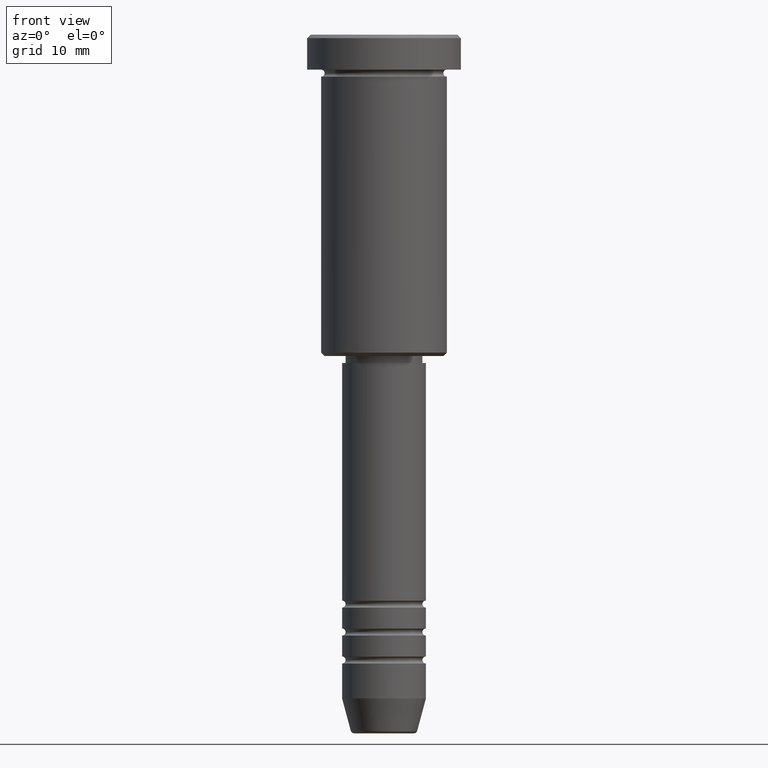
[diagram: clean part render]
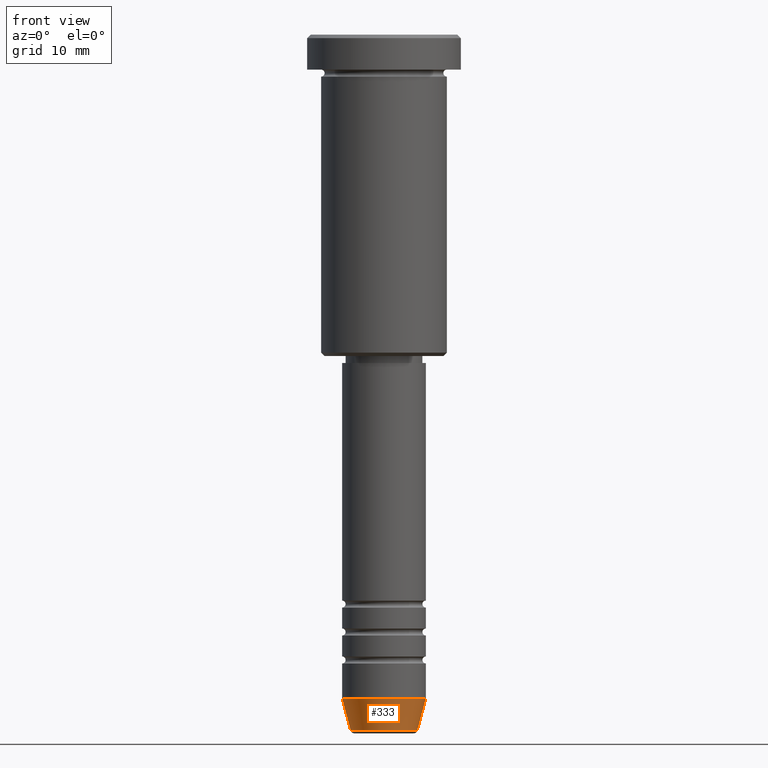
[diagram: same view with one face highlighted and labeled with its STEP entity id]
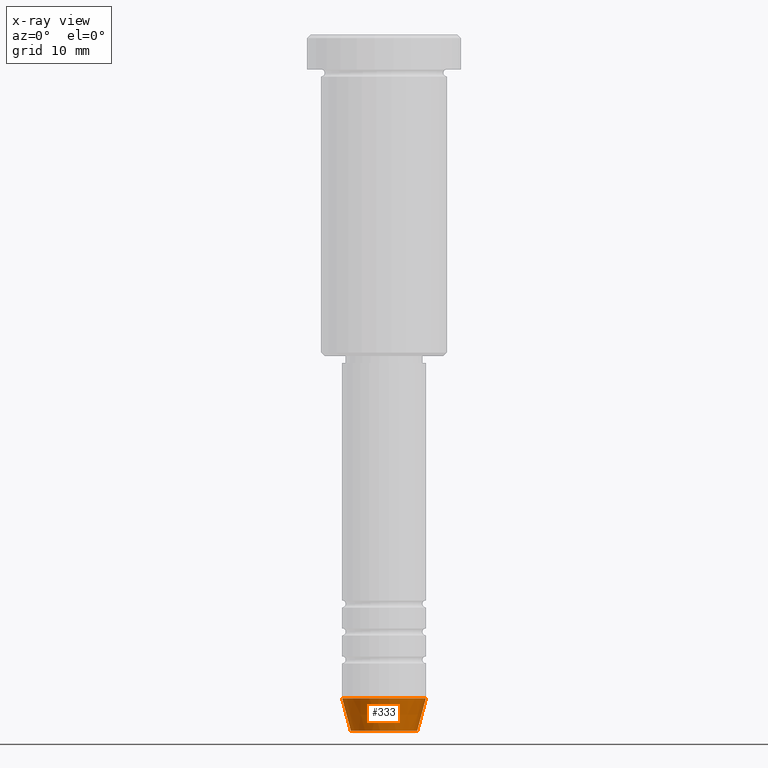
[diagram: x-ray of the same camera — body ghosted, the highlighted face saturated]
A machine part, front view. The second image highlights one B-rep face of the part: STEP entity #333.
The next image is the same camera in x-ray: the body ghosted, the highlighted face saturated — about 0% of this face is hidden behind the body in this view.
In plain terms, the highlighted conical surface has half-angle 15 deg.
Its self-contained STEP definition (entity closure, byte-faithful):
#44 = CARTESIAN_POINT ( 'NONE',  ( -4.759553456999436882, 6.588326350684601277E-16, -99.62940952255127058 ) ) ;
#50 = VERTEX_POINT ( 'NONE', #251 ) ;
#89 = FACE_OUTER_BOUND ( 'NONE', #985, .T. ) ;
#180 = VERTEX_POINT ( 'NONE', #639 ) ;
#184 = EDGE_CURVE ( 'NONE', #685, #606, #198, .T. ) ;
#198 = LINE ( 'NONE', #1008, #725 ) ;
#233 = ORIENTED_EDGE ( 'NONE', *, *, #798, .T. ) ;
#244 = AXIS2_PLACEMENT_3D ( 'NONE', #697, #352, #342 ) ;
#248 = AXIS2_PLACEMENT_3D ( 'NONE', #907, #1094, #927 ) ;
#251 = CARTESIAN_POINT ( 'NONE',  ( 4.759553456999436882, 0.000000000000000000, -99.62940952255127058 ) ) ;
#263 = DIRECTION ( 'NONE',  ( 0.2588190451025213501, 0.000000000000000000, 0.9659258262890680902 ) ) ;
#324 = CIRCLE ( 'NONE', #244, 4.759553456999436882 ) ;
#333 = ADVANCED_FACE ( 'NONE', ( #89 ), #576, .T. ) ;
#342 = DIRECTION ( 'NONE',  ( 1.000000000000000000, 0.000000000000000000, 0.000000000000000000 ) ) ;
#352 = DIRECTION ( 'NONE',  ( -0.000000000000000000, -0.000000000000000000, 1.000000000000000000 ) ) ;
#375 = DIRECTION ( 'NONE',  ( -0.2588190451025213501, 3.169619151431772337E-17, 0.9659258262890680902 ) ) ;
#472 = CARTESIAN_POINT ( 'NONE',  ( 6.000000000000000000, 0.000000000000000000, -95.00000000000000000 ) ) ;
#502 = ORIENTED_EDGE ( 'NONE', *, *, #942, .T. ) ;
#548 = LINE ( 'NONE', #472, #891 ) ;
#576 = CONICAL_SURFACE ( 'NONE', #248, 6.000000000000000000, 0.2617993877991500740 ) ;
#606 = VERTEX_POINT ( 'NONE', #1040 ) ;
#611 = CIRCLE ( 'NONE', #721, 6.000000000000000000 ) ;
#639 = CARTESIAN_POINT ( 'NONE',  ( 6.000000000000000000, 0.000000000000000000, -95.00000000000000000 ) ) ;
#646 = CARTESIAN_POINT ( 'NONE',  ( 0.000000000000000000, 0.000000000000000000, -95.00000000000000000 ) ) ;
#685 = VERTEX_POINT ( 'NONE', #44 ) ;
#697 = CARTESIAN_POINT ( 'NONE',  ( 0.000000000000000000, 0.000000000000000000, -99.62940952255127058 ) ) ;
#714 = DIRECTION ( 'NONE',  ( 1.000000000000000000, 0.000000000000000000, 0.000000000000000000 ) ) ;
#721 = AXIS2_PLACEMENT_3D ( 'NONE', #646, #990, #714 ) ;
#725 = VECTOR ( 'NONE', #375, 1000.000000000000000 ) ;
#798 = EDGE_CURVE ( 'NONE', #685, #50, #324, .T. ) ;
#848 = ORIENTED_EDGE ( 'NONE', *, *, #184, .F. ) ;
#891 = VECTOR ( 'NONE', #263, 1000.000000000000000 ) ;
#907 = CARTESIAN_POINT ( 'NONE',  ( 0.000000000000000000, 0.000000000000000000, -95.00000000000000000 ) ) ;
#927 = DIRECTION ( 'NONE',  ( 1.000000000000000000, 0.000000000000000000, 0.000000000000000000 ) ) ;
#942 = EDGE_CURVE ( 'NONE', #50, #180, #548, .T. ) ;
#948 = EDGE_CURVE ( 'NONE', #606, #180, #611, .T. ) ;
#985 = EDGE_LOOP ( 'NONE', ( #848, #233, #502, #1032 ) ) ;
#990 = DIRECTION ( 'NONE',  ( -0.000000000000000000, -0.000000000000000000, 1.000000000000000000 ) ) ;
#1008 = CARTESIAN_POINT ( 'NONE',  ( -6.000000000000000000, 7.347880794884119736E-16, -95.00000000000000000 ) ) ;
#1032 = ORIENTED_EDGE ( 'NONE', *, *, #948, .F. ) ;
#1040 = CARTESIAN_POINT ( 'NONE',  ( -6.000000000000000000, 7.347880794884119736E-16, -95.00000000000000000 ) ) ;
#1094 = DIRECTION ( 'NONE',  ( -0.000000000000000000, -0.000000000000000000, 1.000000000000000000 ) ) ;